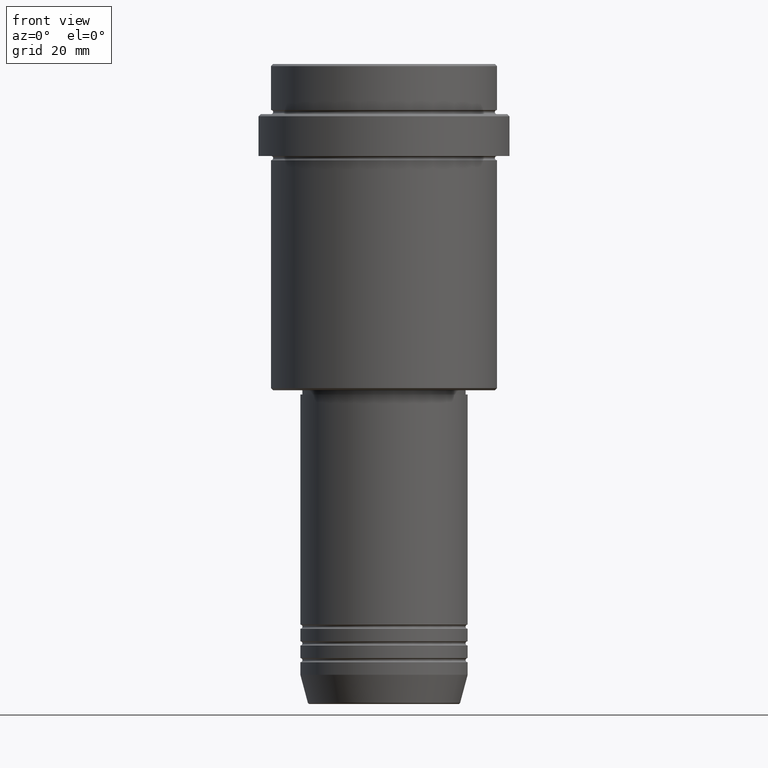
[diagram: clean part render]
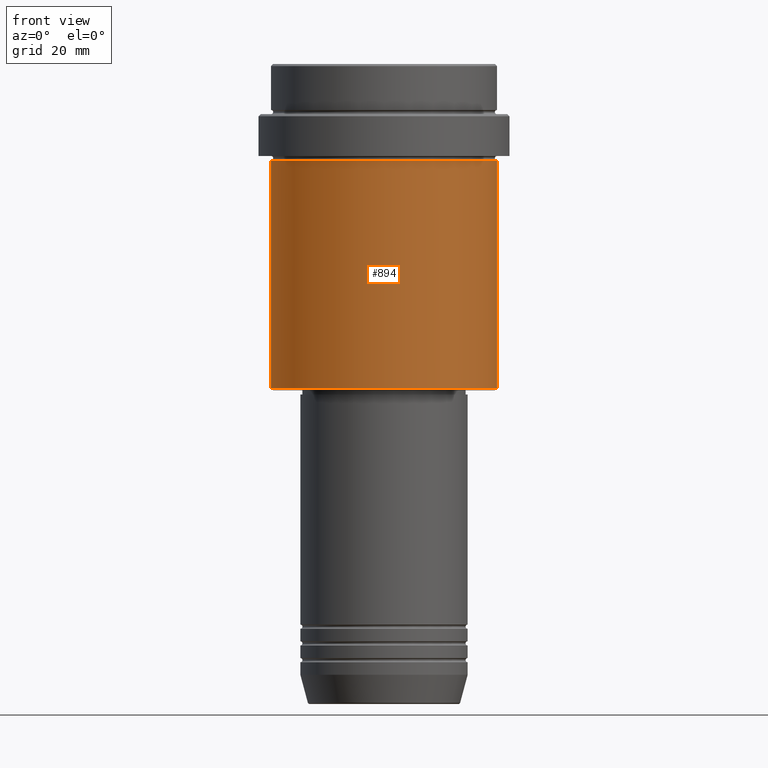
[diagram: same view with one face highlighted and labeled with its STEP entity id]
A machine part, front view. The second image highlights one B-rep face of the part: STEP entity #894.
In plain terms, the highlighted cylindrical surface (partial cylindrical patch) has radius 27 mm, axis along (-0, -0, 1).
Its self-contained STEP definition (entity closure, byte-faithful):
#40 = DIRECTION ( 'NONE',  ( 1.000000000000000000, 0.000000000000000000, 0.000000000000000000 ) ) ;
#49 = DIRECTION ( 'NONE',  ( -0.000000000000000000, -0.000000000000000000, 1.000000000000000000 ) ) ;
#76 = VECTOR ( 'NONE', #1038, 1000.000000000000000 ) ;
#104 = VECTOR ( 'NONE', #865, 1000.000000000000000 ) ;
#137 = FACE_OUTER_BOUND ( 'NONE', #918, .T. ) ;
#142 = AXIS2_PLACEMENT_3D ( 'NONE', #240, #49, #1139 ) ;
#147 = CARTESIAN_POINT ( 'NONE',  ( 0.000000000000000000, 0.000000000000000000, -23.00000000000000000 ) ) ;
#204 = ORIENTED_EDGE ( 'NONE', *, *, #1099, .F. ) ;
#240 = CARTESIAN_POINT ( 'NONE',  ( 0.000000000000000000, 0.000000000000000000, -77.50000000000002842 ) ) ;
#271 = VERTEX_POINT ( 'NONE', #764 ) ;
#377 = ORIENTED_EDGE ( 'NONE', *, *, #1262, .T. ) ;
#394 = AXIS2_PLACEMENT_3D ( 'NONE', #147, #1121, #1021 ) ;
#524 = CARTESIAN_POINT ( 'NONE',  ( 26.99999999999999645, 0.000000000000000000, -77.50000000000002842 ) ) ;
#552 = VERTEX_POINT ( 'NONE', #524 ) ;
#580 = DIRECTION ( 'NONE',  ( -0.000000000000000000, -0.000000000000000000, 1.000000000000000000 ) ) ;
#644 = LINE ( 'NONE', #872, #104 ) ;
#740 = CARTESIAN_POINT ( 'NONE',  ( -26.99999999999999645, 3.306546357697853339E-15, -23.00000000000000000 ) ) ;
#764 = CARTESIAN_POINT ( 'NONE',  ( 26.99999999999999645, 0.000000000000000000, -23.00000000000000000 ) ) ;
#767 = EDGE_CURVE ( 'NONE', #937, #271, #1341, .T. ) ;
#777 = CIRCLE ( 'NONE', #142, 26.99999999999999645 ) ;
#795 = ORIENTED_EDGE ( 'NONE', *, *, #1416, .T. ) ;
#832 = CARTESIAN_POINT ( 'NONE',  ( 26.99999999999999645, 0.000000000000000000, 0.000000000000000000 ) ) ;
#842 = AXIS2_PLACEMENT_3D ( 'NONE', #1236, #580, #40 ) ;
#865 = DIRECTION ( 'NONE',  ( -0.000000000000000000, -0.000000000000000000, 1.000000000000000000 ) ) ;
#872 = CARTESIAN_POINT ( 'NONE',  ( -26.99999999999999645, 3.306546357697853339E-15, 0.000000000000000000 ) ) ;
#894 = ADVANCED_FACE ( 'NONE', ( #137 ), #1254, .T. ) ;
#918 = EDGE_LOOP ( 'NONE', ( #204, #377, #795, #926 ) ) ;
#926 = ORIENTED_EDGE ( 'NONE', *, *, #767, .F. ) ;
#933 = VERTEX_POINT ( 'NONE', #1380 ) ;
#937 = VERTEX_POINT ( 'NONE', #740 ) ;
#1021 = DIRECTION ( 'NONE',  ( 1.000000000000000000, 0.000000000000000000, 0.000000000000000000 ) ) ;
#1038 = DIRECTION ( 'NONE',  ( -0.000000000000000000, -0.000000000000000000, 1.000000000000000000 ) ) ;
#1099 = EDGE_CURVE ( 'NONE', #933, #937, #644, .T. ) ;
#1121 = DIRECTION ( 'NONE',  ( -0.000000000000000000, -0.000000000000000000, 1.000000000000000000 ) ) ;
#1139 = DIRECTION ( 'NONE',  ( -1.000000000000000000, 0.000000000000000000, 0.000000000000000000 ) ) ;
#1236 = CARTESIAN_POINT ( 'NONE',  ( 0.000000000000000000, 0.000000000000000000, 0.000000000000000000 ) ) ;
#1254 = CYLINDRICAL_SURFACE ( 'NONE', #842, 26.99999999999999645 ) ;
#1262 = EDGE_CURVE ( 'NONE', #933, #552, #777, .T. ) ;
#1341 = CIRCLE ( 'NONE', #394, 26.99999999999999645 ) ;
#1380 = CARTESIAN_POINT ( 'NONE',  ( -26.99999999999999645, 3.306546357697853339E-15, -77.50000000000002842 ) ) ;
#1389 = LINE ( 'NONE', #832, #76 ) ;
#1416 = EDGE_CURVE ( 'NONE', #552, #271, #1389, .T. ) ;